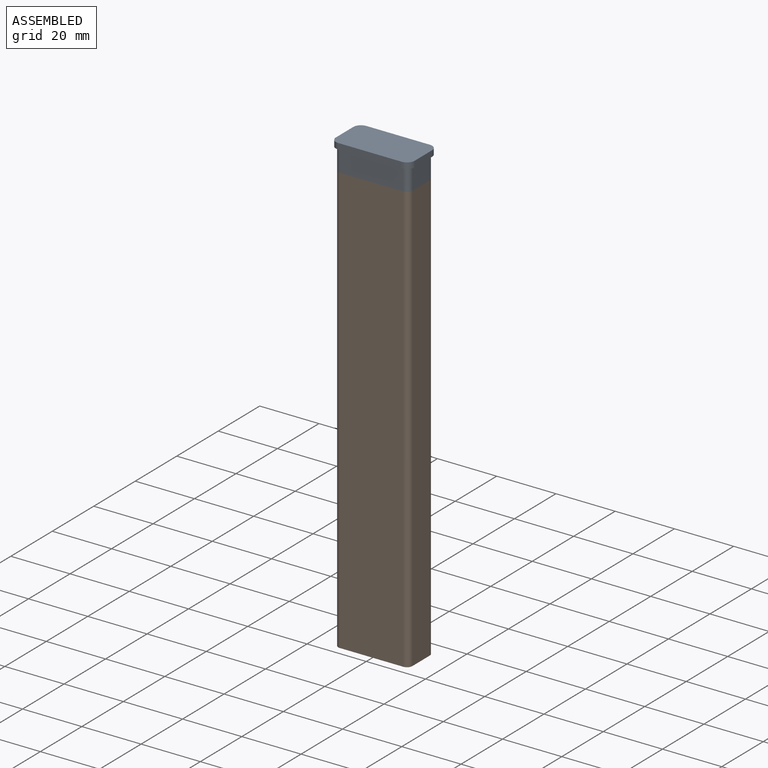
[diagram: assembled view]
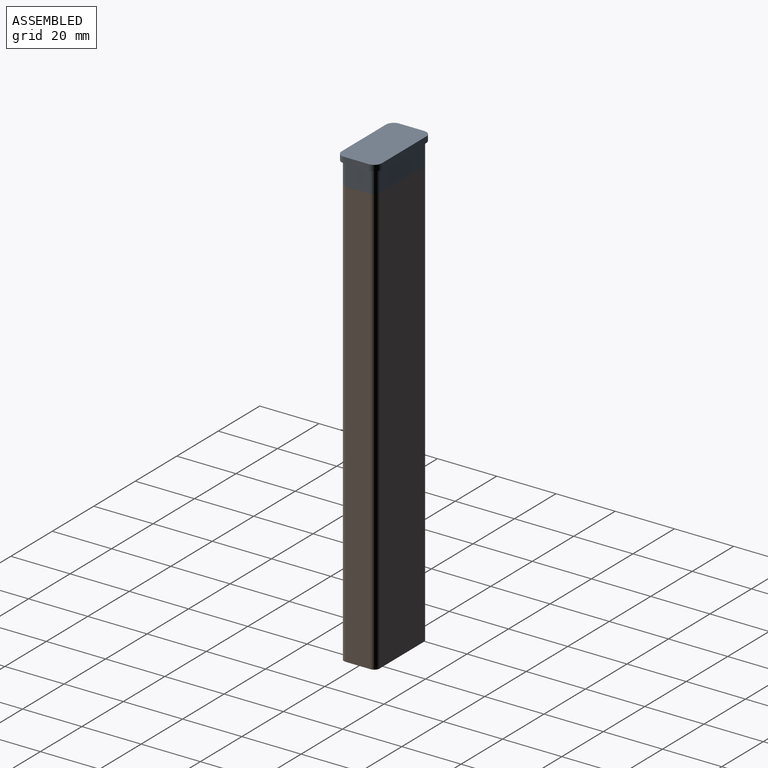
[diagram: assembled view, second angle]
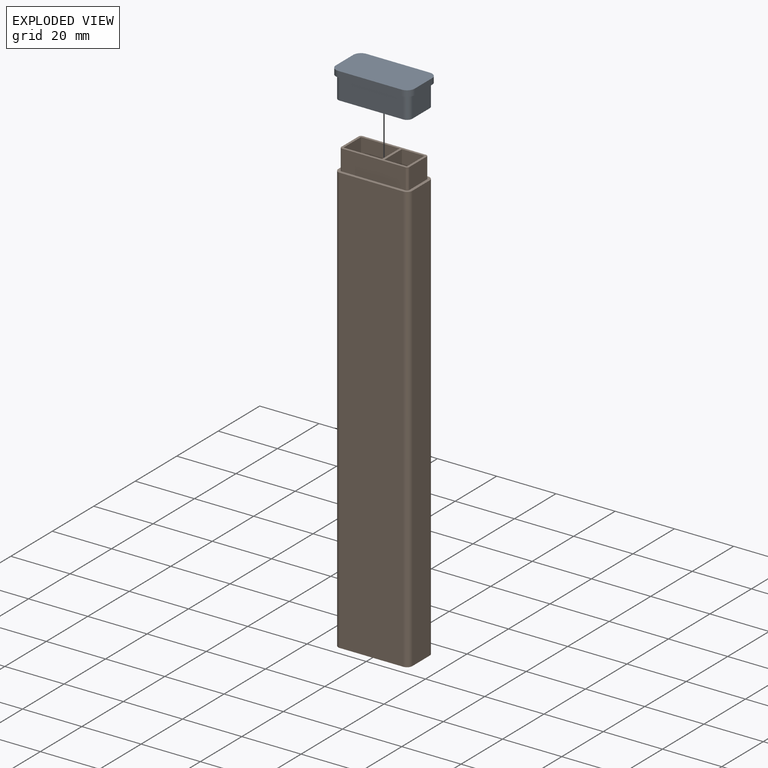
[diagram: exploded view]
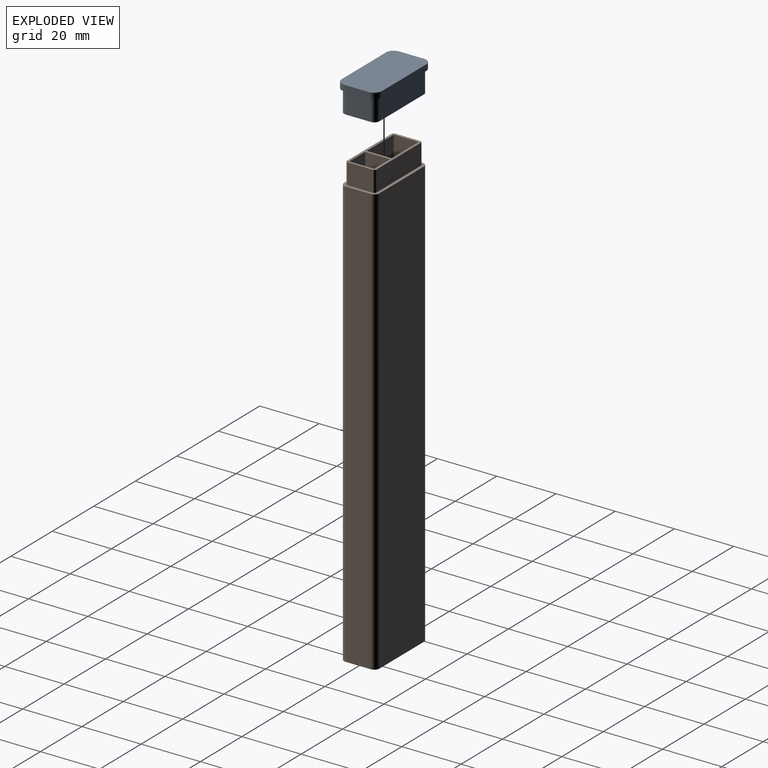
[diagram: exploded view, second angle]
ASSEMBLY  parts=2 mates=3
PART A: 28 faces, bbox 26.6x13.6x9.4 mm
  f0: plane 25x12mm, normal (0,0,-1), area 54.7mm2, adj f1,f2,f3,f4,f5,f6,f7,f8
  f1: plane 21.4x7.4mm, normal (0,-1,0), area 158.4mm2, adj f0,f2,f8,f9
  f2: cylinder r=1.8mm len=7.4mm, axis (0,0,-1), area 20.9mm2, adj f0,f1,f3,f9
  f3: plane 8.4x7.4mm, normal (1,0,0), area 62.2mm2, adj f0,f2,f4,f9
  f4: cylinder r=1.8mm len=7.4mm, axis (0,0,-1), area 20.9mm2, adj f0,f3,f5,f9
  f5: plane 21.4x7.4mm, normal (0,1,0), area 158.4mm2, adj f0,f4,f6,f9
  f6: cylinder r=1.8mm len=7.4mm, axis (0,0,-1), area 20.9mm2, adj f0,f5,f7,f9
  f7: plane 8.4x7.4mm, normal (-1,0,0), area 62.2mm2, adj f0,f6,f8,f9
  f8: cylinder r=1.8mm len=7.4mm, axis (0,0,-1), area 20.9mm2, adj f0,f1,f7,f9
  f9: plane 26.6x13.6mm, normal (0,0,-1), area 58.7mm2, adj f1,f2,f3,f4,f5,f6,f7,f8
  f10: plane 21.4x2mm, normal (0,-1,0), area 42.8mm2, adj f9,f11,f17,f18
  f11: cylinder r=2.6mm len=2.6mm, axis (0,0,-1), area 8.2mm2, adj f9,f10,f12,f18
  f12: plane 8.4x2mm, normal (1,0,0), area 16.8mm2, adj f9,f11,f13,f18
  f13: cylinder r=2.6mm len=2.6mm, axis (0,0,-1), area 8.2mm2, adj f9,f12,f14,f18
  f14: plane 21.4x2mm, normal (0,1,0), area 42.8mm2, adj f9,f13,f15,f18
  f15: cylinder r=2.6mm len=2.6mm, axis (0,0,-1), area 8.2mm2, adj f9,f14,f16,f18
  f16: plane 8.4x2mm, normal (-1,0,0), area 16.8mm2, adj f9,f15,f17,f18
  f17: cylinder r=2.6mm len=2.6mm, axis (0,0,-1), area 8.2mm2, adj f9,f10,f16,f18
  f18: plane 26.6x13.6mm, normal (0,0,1), area 356mm2, adj f10,f11,f12,f13,f14,f15,f16,f17
  f19: cylinder r=1mm len=7.4mm, axis (0,0,-1), area 11.6mm2, adj f0,f20,f26,f27
  f20: plane 8.4x7.4mm, normal (1,0,0), area 62.2mm2, adj f0,f19,f21,f27
  f21: cylinder r=1mm len=7.4mm, axis (0,0,-1), area 11.6mm2, adj f0,f20,f22,f27
  f22: plane 21.4x7.4mm, normal (0,-1,0), area 158.4mm2, adj f0,f21,f23,f27
  f23: cylinder r=1mm len=7.4mm, axis (0,0,-1), area 11.6mm2, adj f0,f22,f24,f27
  f24: plane 8.4x7.4mm, normal (-1,0,0), area 62.2mm2, adj f0,f23,f25,f27
  f25: cylinder r=1mm len=7.4mm, axis (0,0,-1), area 11.6mm2, adj f0,f24,f26,f27
  f26: plane 21.4x7.4mm, normal (0,1,0), area 158.4mm2, adj f0,f19,f25,f27
  f27: plane 23.4x10.4mm, normal (0,0,-1), area 242.5mm2, adj f19,f20,f21,f22,f23,f24,f25,f26
PART B: 29 faces, bbox 25x12x152 mm
  f0: plane 21.4x7mm, normal (0,-1,0), area 149.8mm2, adj f4,f19,f25,f28
  f1: plane 8.4x7mm, normal (1,0,0), area 58.8mm2, adj f4,f19,f25,f26
  f2: plane 21.4x7mm, normal (0,1,0), area 149.8mm2, adj f4,f19,f26,f27
  f3: plane 8.4x7mm, normal (-1,0,0), area 58.8mm2, adj f4,f19,f27,f28
  f4: plane 23x10mm, normal (0,0,1), area 56.4mm2, adj f0,f1,f2,f3,f5,f6,f7,f8
  f5: plane 150x7.6mm, normal (0,1,0), area 1140mm2, adj f4,f6,f8,f9
  f6: plane 150x8.4mm, normal (1,0,0), area 1260mm2, adj f4,f5,f7,f9
  f7: plane 150x7.6mm, normal (0,-1,0), area 1140mm2, adj f4,f6,f8,f9
  f8: plane 150x8.4mm, normal (-1,0,0), area 1260mm2, adj f4,f5,f7,f9
  f9: plane 8.4x7.6mm, normal (0,0,1), area 63.8mm2, adj f5,f6,f7,f8
  f10: plane 150x13mm, normal (0,1,0), area 1950mm2, adj f4,f11,f13,f14
  f11: plane 150x8.4mm, normal (1,0,0), area 1260mm2, adj f4,f10,f12,f14
  f12: plane 150x13mm, normal (0,-1,0), area 1950mm2, adj f4,f11,f13,f14
  f13: plane 150x8.4mm, normal (-1,0,0), area 1260mm2, adj f4,f10,f12,f14
  f14: plane 13x8.4mm, normal (0,0,1), area 109.2mm2, adj f10,f11,f12,f13
  f15: plane 145x8.4mm, normal (1,0,0), area 1218mm2, adj f19,f20,f21,f24
  f16: plane 145x21.4mm, normal (0,-1,0), area 3103mm2, adj f19,f20,f21,f22
  f17: plane 145x8.4mm, normal (-1,0,0), area 1218mm2, adj f19,f20,f22,f23
  f18: plane 145x21.4mm, normal (0,1,0), area 3103mm2, adj f19,f20,f23,f24
  f19: plane 25x12mm, normal (0,0,1), area 67.8mm2, adj f0,f1,f2,f3,f15,f16,f17,f18
  f20: plane 25x12mm, normal (0,0,-1), area 297.2mm2, adj f15,f16,f17,f18,f21,f22,f23,f24
  f21: cylinder r=1.8mm len=145mm, axis (0,0,1), area 410mm2, adj f15,f16,f19,f20
  f22: cylinder r=1.8mm len=145mm, axis (0,0,-1), area 410mm2, adj f16,f17,f19,f20
  f23: cylinder r=1.8mm len=145mm, axis (0,0,1), area 410mm2, adj f17,f18,f19,f20
  f24: cylinder r=1.8mm len=145mm, axis (0,0,-1), area 410mm2, adj f15,f18,f19,f20
  f25: cylinder r=0.8mm len=7mm, axis (0,0,1), area 8.8mm2, adj f0,f1,f4,f19
  f26: cylinder r=0.8mm len=7mm, axis (0,0,-1), area 8.8mm2, adj f1,f2,f4,f19
  f27: cylinder r=0.8mm len=7mm, axis (0,0,1), area 8.8mm2, adj f2,f3,f4,f19
  f28: cylinder r=0.8mm len=7mm, axis (0,0,-1), area 8.8mm2, adj f0,f3,f4,f19
PLACE A at identity
PLACE B at identity fixed
MATE planar A.f0 <-> B.f19  axis (0,0,-1) through (0,-6,145)mm
MATE planar B.f16 <-> A.f1  axis (0,-1,0) through (0,-6,145)mm
MATE planar A.f3 <-> B.f15  axis (1,0,0) through (12.5,0,145)mm
